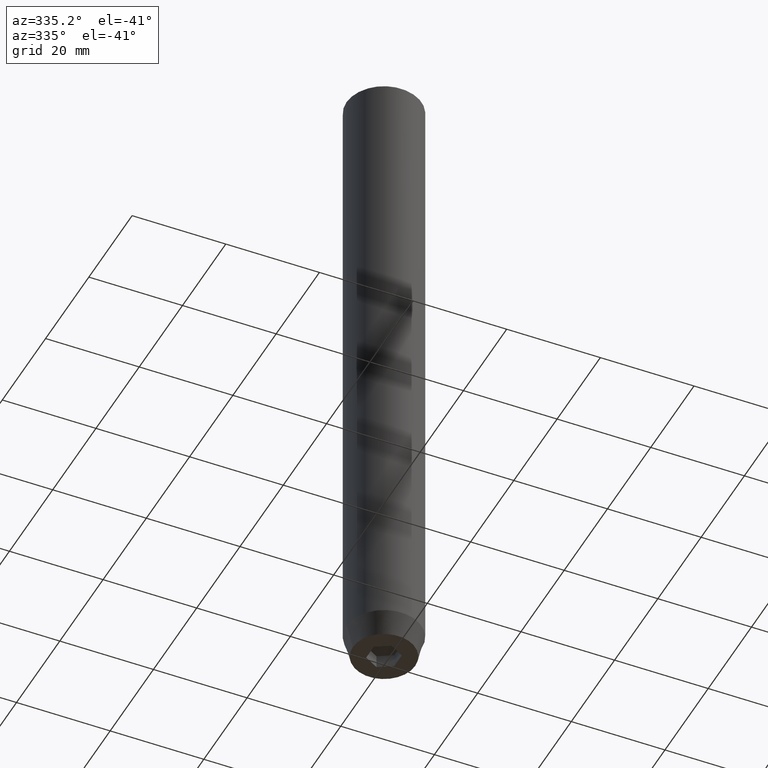
[diagram: clean part render]
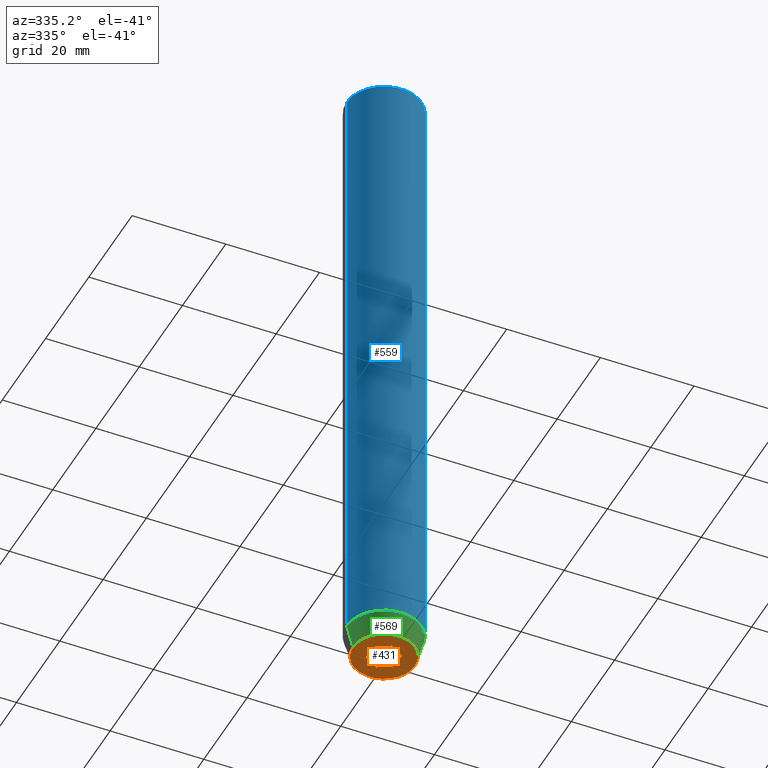
[diagram: same view with three faces highlighted in distinct colors, each labeled with its STEP entity id]
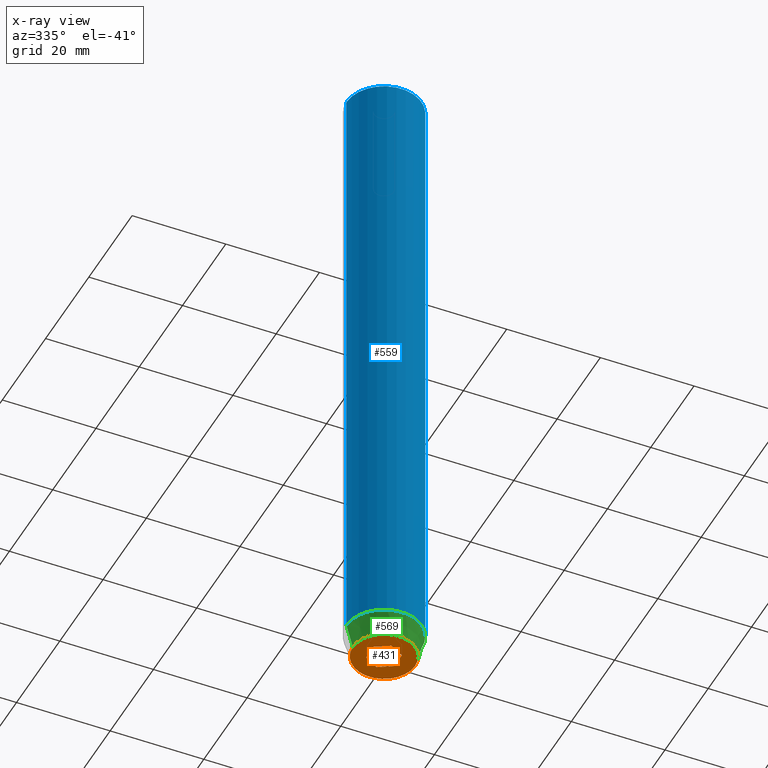
[diagram: x-ray of the same camera — body ghosted, the three highlighted faces saturated]
A machine part, auxiliary view with three faces highlighted in distinct colors.
The next image is the same camera in x-ray (body ghosted, the three faces saturated) — at least one of them is partly hidden behind the body in this view.
Their STEP definitions:

[orange] entity #431 — the highlighted planar face has unit normal (0, 0, -1).
#5 = CARTESIAN_POINT ( 'NONE',  ( 0.000000000000000000, 6.660254037844382857, -140.0000000000000000 ) ) ;
#15 = EDGE_CURVE ( 'NONE', #427, #334, #568, .T. ) ;
#24 = DIRECTION ( 'NONE',  ( -2.503857664561932376E-16, 1.000000000000000000, 0.000000000000000000 ) ) ;
#32 = EDGE_CURVE ( 'NONE', #234, #575, #215, .T. ) ;
#34 = ORIENTED_EDGE ( 'NONE', *, *, #32, .F. ) ;
#41 = DIRECTION ( 'NONE',  ( 1.000000000000000000, 0.000000000000000000, 0.000000000000000000 ) ) ;
#46 = DIRECTION ( 'NONE',  ( 1.000000000000000000, 0.000000000000000000, 0.000000000000000000 ) ) ;
#48 = EDGE_CURVE ( 'NONE', #511, #188, #88, .T. ) ;
#84 = CARTESIAN_POINT ( 'NONE',  ( 1.500000000000000222, -2.598076211353315568, -140.0000000000000000 ) ) ;
#88 = LINE ( 'NONE', #349, #551 ) ;
#96 = FACE_BOUND ( 'NONE', #192, .T. ) ;
#131 = LINE ( 'NONE', #399, #326 ) ;
#145 = VECTOR ( 'NONE', #489, 1000.000000000000000 ) ;
#160 = LINE ( 'NONE', #84, #180 ) ;
#167 = EDGE_CURVE ( 'NONE', #367, #427, #160, .T. ) ;
#174 = AXIS2_PLACEMENT_3D ( 'NONE', #5, #499, #447 ) ;
#178 = CARTESIAN_POINT ( 'NONE',  ( -1.500000000000000666, -2.598076211353316456, -140.0000000000000000 ) ) ;
#180 = VECTOR ( 'NONE', #479, 1000.000000000000000 ) ;
#181 = PLANE ( 'NONE',  #174 ) ;
#184 = FACE_OUTER_BOUND ( 'NONE', #433, .T. ) ;
#188 = VERTEX_POINT ( 'NONE', #251 ) ;
#191 = CIRCLE ( 'NONE', #373, 6.660254037844382857 ) ;
#192 = EDGE_LOOP ( 'NONE', ( #276, #211, #557, #517, #238, #519 ) ) ;
#206 = VERTEX_POINT ( 'NONE', #432 ) ;
#208 = EDGE_CURVE ( 'NONE', #334, #511, #380, .T. ) ;
#211 = ORIENTED_EDGE ( 'NONE', *, *, #208, .F. ) ;
#215 = CIRCLE ( 'NONE', #414, 6.660254037844382857 ) ;
#228 = CARTESIAN_POINT ( 'NONE',  ( -2.168404344971008868E-16, -3.464101615137754830, -140.0000000000000000 ) ) ;
#233 = CARTESIAN_POINT ( 'NONE',  ( -3.000000000000000000, -1.732050807568877859, -140.0000000000000000 ) ) ;
#234 = VERTEX_POINT ( 'NONE', #301 ) ;
#238 = ORIENTED_EDGE ( 'NONE', *, *, #482, .F. ) ;
#251 = CARTESIAN_POINT ( 'NONE',  ( 0.000000000000000000, 3.464101615137754386, -140.0000000000000000 ) ) ;
#256 = CARTESIAN_POINT ( 'NONE',  ( 0.000000000000000000, 0.000000000000000000, -140.0000000000000000 ) ) ;
#273 = EDGE_CURVE ( 'NONE', #188, #206, #377, .T. ) ;
#276 = ORIENTED_EDGE ( 'NONE', *, *, #48, .F. ) ;
#301 = CARTESIAN_POINT ( 'NONE',  ( 6.660254037844382857, 0.000000000000000000, -140.0000000000000000 ) ) ;
#305 = DIRECTION ( 'NONE',  ( 0.000000000000000000, -1.000000000000000000, 0.000000000000000000 ) ) ;
#309 = DIRECTION ( 'NONE',  ( 0.8660254037844387076, 0.4999999999999999445, 0.000000000000000000 ) ) ;
#326 = VECTOR ( 'NONE', #305, 1000.000000000000000 ) ;
#334 = VERTEX_POINT ( 'NONE', #233 ) ;
#348 = CARTESIAN_POINT ( 'NONE',  ( 1.500000000000000222, 2.598076211353315568, -140.0000000000000000 ) ) ;
#349 = CARTESIAN_POINT ( 'NONE',  ( -1.499999999999999556, 2.598076211353316012, -140.0000000000000000 ) ) ;
#367 = VERTEX_POINT ( 'NONE', #543 ) ;
#370 = VECTOR ( 'NONE', #24, 1000.000000000000000 ) ;
#373 = AXIS2_PLACEMENT_3D ( 'NONE', #440, #404, #41 ) ;
#377 = LINE ( 'NONE', #348, #145 ) ;
#380 = LINE ( 'NONE', #474, #370 ) ;
#399 = CARTESIAN_POINT ( 'NONE',  ( 3.000000000000000000, 0.000000000000000000, -140.0000000000000000 ) ) ;
#404 = DIRECTION ( 'NONE',  ( -0.000000000000000000, -0.000000000000000000, 1.000000000000000000 ) ) ;
#407 = EDGE_CURVE ( 'NONE', #575, #234, #191, .T. ) ;
#414 = AXIS2_PLACEMENT_3D ( 'NONE', #256, #492, #46 ) ;
#423 = ORIENTED_EDGE ( 'NONE', *, *, #407, .F. ) ;
#427 = VERTEX_POINT ( 'NONE', #228 ) ;
#431 = ADVANCED_FACE ( 'NONE', ( #96, #184 ), #181, .T. ) ;
#432 = CARTESIAN_POINT ( 'NONE',  ( 3.000000000000000000, 1.732050807568876527, -140.0000000000000000 ) ) ;
#433 = EDGE_LOOP ( 'NONE', ( #34, #423 ) ) ;
#439 = VECTOR ( 'NONE', #580, 1000.000000000000000 ) ;
#440 = CARTESIAN_POINT ( 'NONE',  ( 0.000000000000000000, 0.000000000000000000, -140.0000000000000000 ) ) ;
#447 = DIRECTION ( 'NONE',  ( -1.000000000000000000, 0.000000000000000000, -0.000000000000000000 ) ) ;
#456 = CARTESIAN_POINT ( 'NONE',  ( -6.660254037844382857, 8.976816591066591237E-16, -140.0000000000000000 ) ) ;
#474 = CARTESIAN_POINT ( 'NONE',  ( -3.000000000000000444, -7.511572993685800087E-16, -140.0000000000000000 ) ) ;
#479 = DIRECTION ( 'NONE',  ( -0.8660254037844385966, -0.5000000000000001110, 0.000000000000000000 ) ) ;
#482 = EDGE_CURVE ( 'NONE', #206, #367, #131, .T. ) ;
#489 = DIRECTION ( 'NONE',  ( 0.8660254037844385966, -0.5000000000000001110, 0.000000000000000000 ) ) ;
#492 = DIRECTION ( 'NONE',  ( -0.000000000000000000, -0.000000000000000000, 1.000000000000000000 ) ) ;
#493 = CARTESIAN_POINT ( 'NONE',  ( -3.000000000000000888, 1.732050807568876527, -140.0000000000000000 ) ) ;
#499 = DIRECTION ( 'NONE',  ( 0.000000000000000000, 0.000000000000000000, -1.000000000000000000 ) ) ;
#511 = VERTEX_POINT ( 'NONE', #493 ) ;
#517 = ORIENTED_EDGE ( 'NONE', *, *, #167, .F. ) ;
#519 = ORIENTED_EDGE ( 'NONE', *, *, #273, .F. ) ;
#543 = CARTESIAN_POINT ( 'NONE',  ( 3.000000000000000000, -1.732050807568876527, -140.0000000000000000 ) ) ;
#551 = VECTOR ( 'NONE', #309, 999.9999999999998863 ) ;
#557 = ORIENTED_EDGE ( 'NONE', *, *, #15, .F. ) ;
#568 = LINE ( 'NONE', #178, #439 ) ;
#575 = VERTEX_POINT ( 'NONE', #456 ) ;
#580 = DIRECTION ( 'NONE',  ( -0.8660254037844385966, 0.5000000000000001110, 0.000000000000000000 ) ) ;

[blue] entity #559 — the highlighted cylindrical surface (partial cylindrical patch) has radius 8 mm, axis along (-0, -0, 1).
#35 = CARTESIAN_POINT ( 'NONE',  ( 8.000000000000000000, 0.000000000000000000, -0.5000000000000073275 ) ) ;
#43 = CARTESIAN_POINT ( 'NONE',  ( 0.000000000000000000, 0.000000000000000000, -135.0000000000000000 ) ) ;
#65 = CARTESIAN_POINT ( 'NONE',  ( 0.000000000000000000, 0.000000000000000000, -0.5000000000000073275 ) ) ;
#85 = LINE ( 'NONE', #130, #484 ) ;
#101 = AXIS2_PLACEMENT_3D ( 'NONE', #65, #239, #285 ) ;
#108 = EDGE_CURVE ( 'NONE', #122, #481, #85, .T. ) ;
#110 = EDGE_CURVE ( 'NONE', #465, #122, #469, .T. ) ;
#122 = VERTEX_POINT ( 'NONE', #182 ) ;
#130 = CARTESIAN_POINT ( 'NONE',  ( 8.000000000000000000, 0.000000000000000000, 0.000000000000000000 ) ) ;
#134 = DIRECTION ( 'NONE',  ( -0.000000000000000000, -0.000000000000000000, 1.000000000000000000 ) ) ;
#182 = CARTESIAN_POINT ( 'NONE',  ( 8.000000000000000000, 0.000000000000000000, -135.0000000000000000 ) ) ;
#193 = EDGE_CURVE ( 'NONE', #465, #529, #425, .T. ) ;
#217 = CYLINDRICAL_SURFACE ( 'NONE', #443, 8.000000000000000000 ) ;
#224 = DIRECTION ( 'NONE',  ( -0.000000000000000000, -0.000000000000000000, 1.000000000000000000 ) ) ;
#227 = AXIS2_PLACEMENT_3D ( 'NONE', #43, #540, #261 ) ;
#239 = DIRECTION ( 'NONE',  ( 0.000000000000000000, 0.000000000000000000, -1.000000000000000000 ) ) ;
#261 = DIRECTION ( 'NONE',  ( 1.000000000000000000, 0.000000000000000000, 0.000000000000000000 ) ) ;
#282 = ORIENTED_EDGE ( 'NONE', *, *, #110, .T. ) ;
#285 = DIRECTION ( 'NONE',  ( 1.000000000000000000, 0.000000000000000000, 0.000000000000000000 ) ) ;
#341 = ORIENTED_EDGE ( 'NONE', *, *, #108, .T. ) ;
#344 = DIRECTION ( 'NONE',  ( -0.000000000000000000, -0.000000000000000000, 1.000000000000000000 ) ) ;
#375 = CARTESIAN_POINT ( 'NONE',  ( -8.000000000000000000, 9.797174393178825657E-16, -0.5000000000000073275 ) ) ;
#394 = DIRECTION ( 'NONE',  ( 1.000000000000000000, 0.000000000000000000, 0.000000000000000000 ) ) ;
#425 = LINE ( 'NONE', #487, #458 ) ;
#438 = FACE_OUTER_BOUND ( 'NONE', #515, .T. ) ;
#443 = AXIS2_PLACEMENT_3D ( 'NONE', #541, #134, #394 ) ;
#458 = VECTOR ( 'NONE', #344, 1000.000000000000000 ) ;
#463 = EDGE_CURVE ( 'NONE', #481, #529, #571, .T. ) ;
#465 = VERTEX_POINT ( 'NONE', #468 ) ;
#468 = CARTESIAN_POINT ( 'NONE',  ( -8.000000000000000000, 9.797174393178825657E-16, -135.0000000000000000 ) ) ;
#469 = CIRCLE ( 'NONE', #227, 8.000000000000000000 ) ;
#471 = ORIENTED_EDGE ( 'NONE', *, *, #193, .F. ) ;
#481 = VERTEX_POINT ( 'NONE', #35 ) ;
#484 = VECTOR ( 'NONE', #224, 1000.000000000000000 ) ;
#487 = CARTESIAN_POINT ( 'NONE',  ( -8.000000000000000000, 9.797174393178825657E-16, 0.000000000000000000 ) ) ;
#515 = EDGE_LOOP ( 'NONE', ( #471, #282, #341, #525 ) ) ;
#525 = ORIENTED_EDGE ( 'NONE', *, *, #463, .T. ) ;
#529 = VERTEX_POINT ( 'NONE', #375 ) ;
#540 = DIRECTION ( 'NONE',  ( -0.000000000000000000, -0.000000000000000000, 1.000000000000000000 ) ) ;
#541 = CARTESIAN_POINT ( 'NONE',  ( 0.000000000000000000, 0.000000000000000000, 0.000000000000000000 ) ) ;
#559 = ADVANCED_FACE ( 'NONE', ( #438 ), #217, .T. ) ;
#571 = CIRCLE ( 'NONE', #101, 8.000000000000000000 ) ;

[green] entity #569 — the highlighted conical surface has half-angle 15 deg.
#30 = DIRECTION ( 'NONE',  ( -0.2588190451025211836, 3.169619151431770488E-17, 0.9659258262890680902 ) ) ;
#38 = VECTOR ( 'NONE', #532, 1000.000000000000114 ) ;
#41 = DIRECTION ( 'NONE',  ( 1.000000000000000000, 0.000000000000000000, 0.000000000000000000 ) ) ;
#43 = CARTESIAN_POINT ( 'NONE',  ( 0.000000000000000000, 0.000000000000000000, -135.0000000000000000 ) ) ;
#90 = EDGE_CURVE ( 'NONE', #234, #122, #496, .T. ) ;
#110 = EDGE_CURVE ( 'NONE', #465, #122, #469, .T. ) ;
#122 = VERTEX_POINT ( 'NONE', #182 ) ;
#169 = ORIENTED_EDGE ( 'NONE', *, *, #237, .F. ) ;
#182 = CARTESIAN_POINT ( 'NONE',  ( 8.000000000000000000, 0.000000000000000000, -135.0000000000000000 ) ) ;
#191 = CIRCLE ( 'NONE', #373, 6.660254037844382857 ) ;
#201 = LINE ( 'NONE', #249, #336 ) ;
#227 = AXIS2_PLACEMENT_3D ( 'NONE', #43, #540, #261 ) ;
#234 = VERTEX_POINT ( 'NONE', #301 ) ;
#237 = EDGE_CURVE ( 'NONE', #575, #465, #201, .T. ) ;
#249 = CARTESIAN_POINT ( 'NONE',  ( -8.000000000000000000, 9.797174393178825657E-16, -135.0000000000000000 ) ) ;
#254 = ORIENTED_EDGE ( 'NONE', *, *, #110, .F. ) ;
#261 = DIRECTION ( 'NONE',  ( 1.000000000000000000, 0.000000000000000000, 0.000000000000000000 ) ) ;
#301 = CARTESIAN_POINT ( 'NONE',  ( 6.660254037844382857, 0.000000000000000000, -140.0000000000000000 ) ) ;
#327 = DIRECTION ( 'NONE',  ( 1.000000000000000000, 0.000000000000000000, 0.000000000000000000 ) ) ;
#336 = VECTOR ( 'NONE', #30, 1000.000000000000114 ) ;
#351 = AXIS2_PLACEMENT_3D ( 'NONE', #510, #548, #327 ) ;
#373 = AXIS2_PLACEMENT_3D ( 'NONE', #440, #404, #41 ) ;
#374 = ORIENTED_EDGE ( 'NONE', *, *, #407, .T. ) ;
#387 = EDGE_LOOP ( 'NONE', ( #169, #374, #516, #254 ) ) ;
#395 = CONICAL_SURFACE ( 'NONE', #351, 8.000000000000000000, 0.2617993877991499074 ) ;
#404 = DIRECTION ( 'NONE',  ( -0.000000000000000000, -0.000000000000000000, 1.000000000000000000 ) ) ;
#407 = EDGE_CURVE ( 'NONE', #575, #234, #191, .T. ) ;
#440 = CARTESIAN_POINT ( 'NONE',  ( 0.000000000000000000, 0.000000000000000000, -140.0000000000000000 ) ) ;
#456 = CARTESIAN_POINT ( 'NONE',  ( -6.660254037844382857, 8.976816591066591237E-16, -140.0000000000000000 ) ) ;
#465 = VERTEX_POINT ( 'NONE', #468 ) ;
#468 = CARTESIAN_POINT ( 'NONE',  ( -8.000000000000000000, 9.797174393178825657E-16, -135.0000000000000000 ) ) ;
#469 = CIRCLE ( 'NONE', #227, 8.000000000000000000 ) ;
#496 = LINE ( 'NONE', #577, #38 ) ;
#506 = FACE_OUTER_BOUND ( 'NONE', #387, .T. ) ;
#510 = CARTESIAN_POINT ( 'NONE',  ( 0.000000000000000000, 0.000000000000000000, -135.0000000000000000 ) ) ;
#516 = ORIENTED_EDGE ( 'NONE', *, *, #90, .T. ) ;
#532 = DIRECTION ( 'NONE',  ( 0.2588190451025211836, 0.000000000000000000, 0.9659258262890680902 ) ) ;
#540 = DIRECTION ( 'NONE',  ( -0.000000000000000000, -0.000000000000000000, 1.000000000000000000 ) ) ;
#548 = DIRECTION ( 'NONE',  ( -0.000000000000000000, -0.000000000000000000, 1.000000000000000000 ) ) ;
#569 = ADVANCED_FACE ( 'NONE', ( #506 ), #395, .T. ) ;
#575 = VERTEX_POINT ( 'NONE', #456 ) ;
#577 = CARTESIAN_POINT ( 'NONE',  ( 8.000000000000000000, 0.000000000000000000, -135.0000000000000000 ) ) ;